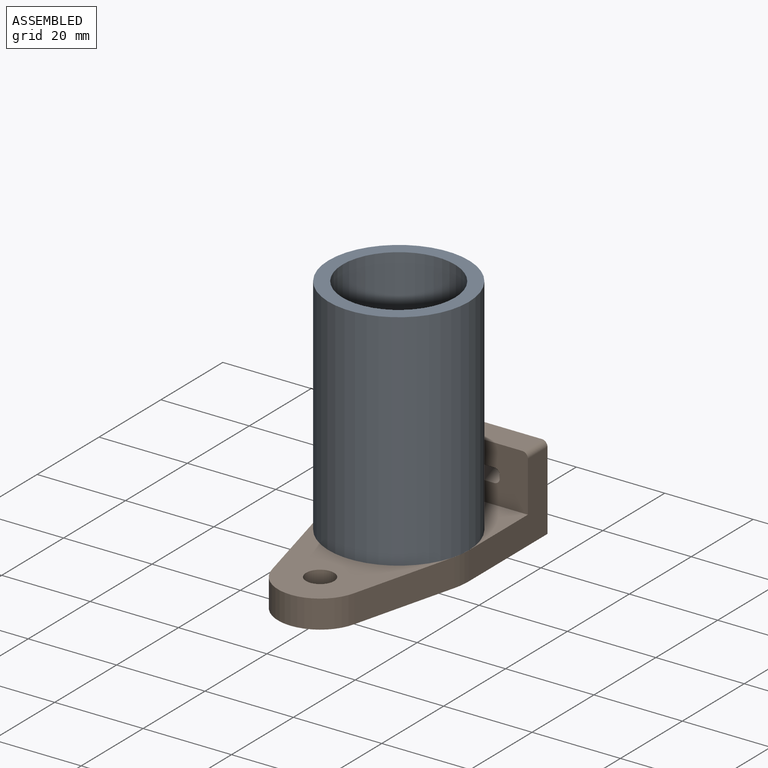
[diagram: assembled view]
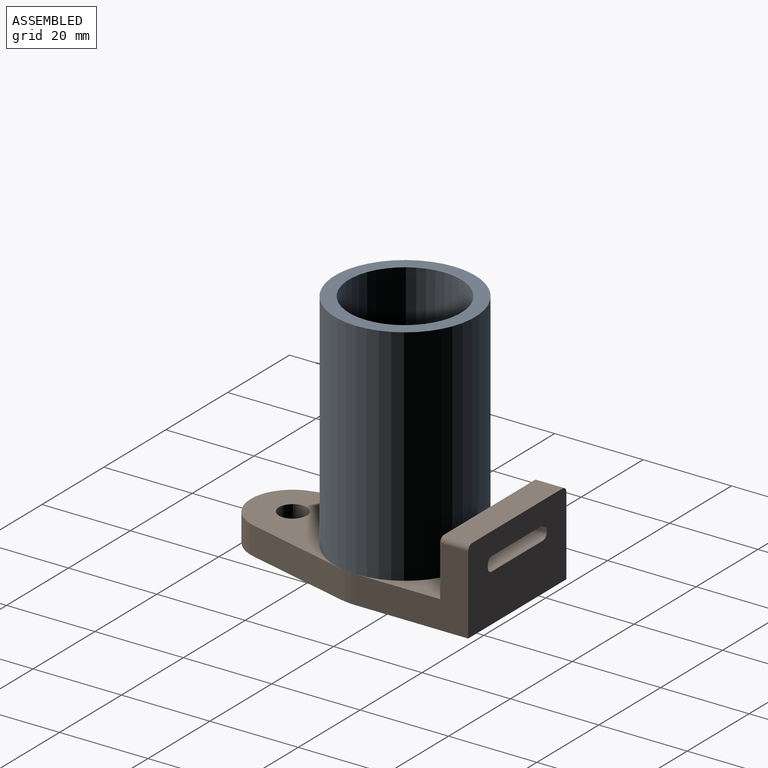
[diagram: assembled view, second angle]
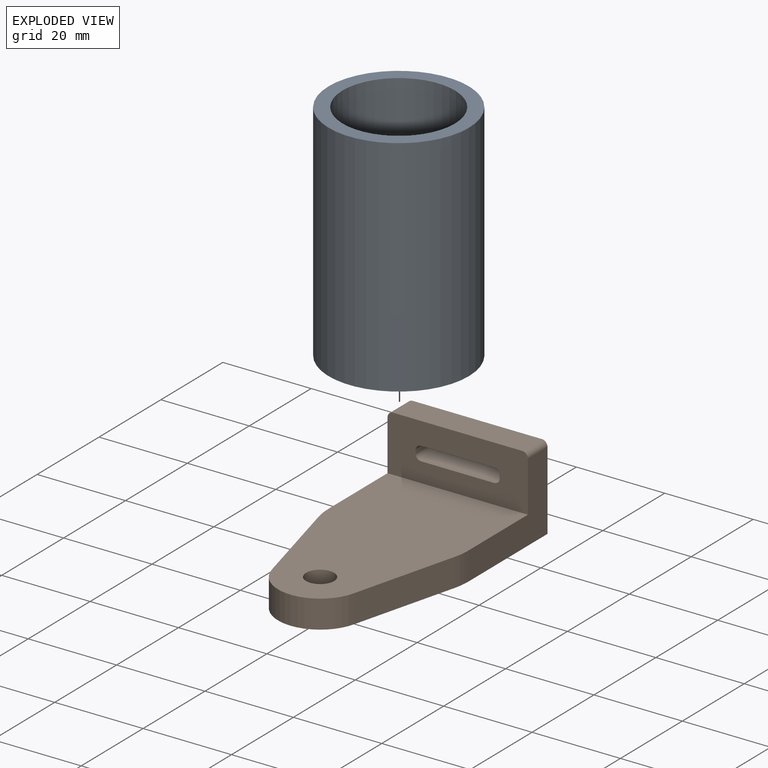
[diagram: exploded view]
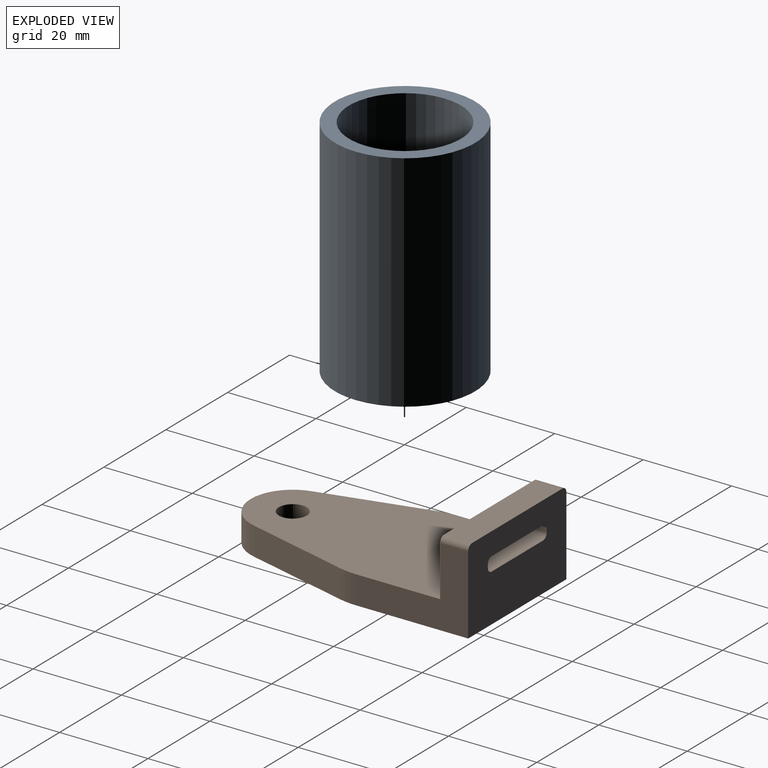
[diagram: exploded view, second angle]
ASSEMBLY  parts=2 mates=2
PART A: 5 faces, bbox 31.8x31.8x50.8 mm
  f0: cylinder r=15.88mm len=50.8mm, axis (0,0,-1), area 5067.1mm2, adj f1,f2
  f1: plane 31.75x31.75mm, normal (0,0,1), area 285mm2, adj f0,f3
  f2: plane 31.75x31.75mm, normal (0,0,-1), area 791.7mm2, adj f0
  f3: cylinder r=12.7mm len=47.63mm, axis (0,0,1), area 3800.3mm2, adj f1,f4
  f4: plane 25.4x25.4mm, normal (0,0,1), area 506.7mm2, adj f3
PART B: 23 faces, bbox 31.8x60.3x19.1 mm
  f0: cylinder r=15.88mm len=6.35mm, axis (0,0,-1), area 25.5mm2, adj f2,f3,f5,f21
  f1: cylinder r=15.88mm len=6.35mm, axis (0,0,-1), area 25.5mm2, adj f2,f3,f4,f19
  f2: plane 53.98x31.75mm, normal (0,0,1), area 1381mm2, adj f0,f1,f4,f5,f7,f19,f20,f21
  f3: plane 60.33x31.75mm, normal (0,0,-1), area 1582.6mm2, adj f0,f1,f4,f5,f6,f19,f20,f21
  f4: plane 25.4x17.78mm, normal (1,0,0), area 233.9mm2, adj f1,f2,f3,f6,f7,f17
  f5: plane 25.4x17.78mm, normal (-1,0,0), area 233.9mm2, adj f0,f2,f3,f6,f7,f18
  f6: plane 31.75x19.05mm, normal (0,1,0), area 545mm2, adj f3,f4,f5,f8,f9,f10,f11,f12
  f7: plane 31.75x12.7mm, normal (0,-1,0), area 343.4mm2, adj f2,f4,f5,f8,f9,f10,f11,f12
  f8: plane 29.21x6.35mm, normal (0,0,1), area 185.5mm2, adj f6,f7,f17,f18
  f9: plane 16.51x6.35mm, normal (0,0,1), area 104.8mm2, adj f6,f7,f13,f14
  f10: plane 6.35x0.64mm, normal (-1,0,0), area 4mm2, adj f6,f7,f13,f15
  f11: plane 6.35x0.64mm, normal (1,0,0), area 4mm2, adj f6,f7,f14,f16
  f12: plane 16.51x6.35mm, normal (0,0,-1), area 104.8mm2, adj f6,f7,f15,f16
  f13: cylinder r=1.27mm len=6.35mm, axis (0,-1,0), area 12.7mm2, adj f6,f7,f9,f10
  f14: cylinder r=1.27mm len=6.35mm, axis (0,1,0), area 12.7mm2, adj f6,f7,f9,f11
  f15: cylinder r=1.27mm len=6.35mm, axis (0,1,0), area 12.7mm2, adj f6,f7,f10,f12
  f16: cylinder r=1.27mm len=6.35mm, axis (0,-1,0), area 12.7mm2, adj f6,f7,f11,f12
  f17: cylinder r=1.27mm len=6.35mm, axis (0,-1,0), area 12.7mm2, adj f4,f6,f7,f8
  f18: cylinder r=1.27mm len=6.35mm, axis (0,1,0), area 12.7mm2, adj f5,f6,f7,f8
  f19: plane 23.57x6.35mm, normal (0.97,-0.25,0), area 154.6mm2, adj f1,f2,f3,f20
  f20: cylinder r=9.53mm len=18.56mm, axis (0,0,-1), area 162.6mm2, adj f2,f3,f19,f21
  f21: plane 23.57x6.35mm, normal (-0.97,-0.25,0), area 154.6mm2, adj f0,f2,f3,f20
  f22: cylinder r=3.17mm len=6.35mm, axis (0,0,1), area 126.7mm2, adj f2,f3
PLACE A t=(-1,-4.52,-1.96)mm
PLACE B t=(-1,-4.52,-8.31)mm fixed
MATE cylindrical A.f0 <-> B.f0  axis (0,0,-1) through (-1,-4.52,23.44)mm
MATE parallel B.f2 <-> A.f0  axis (0,0,1) through (-1,-8.43,-1.96)mm
